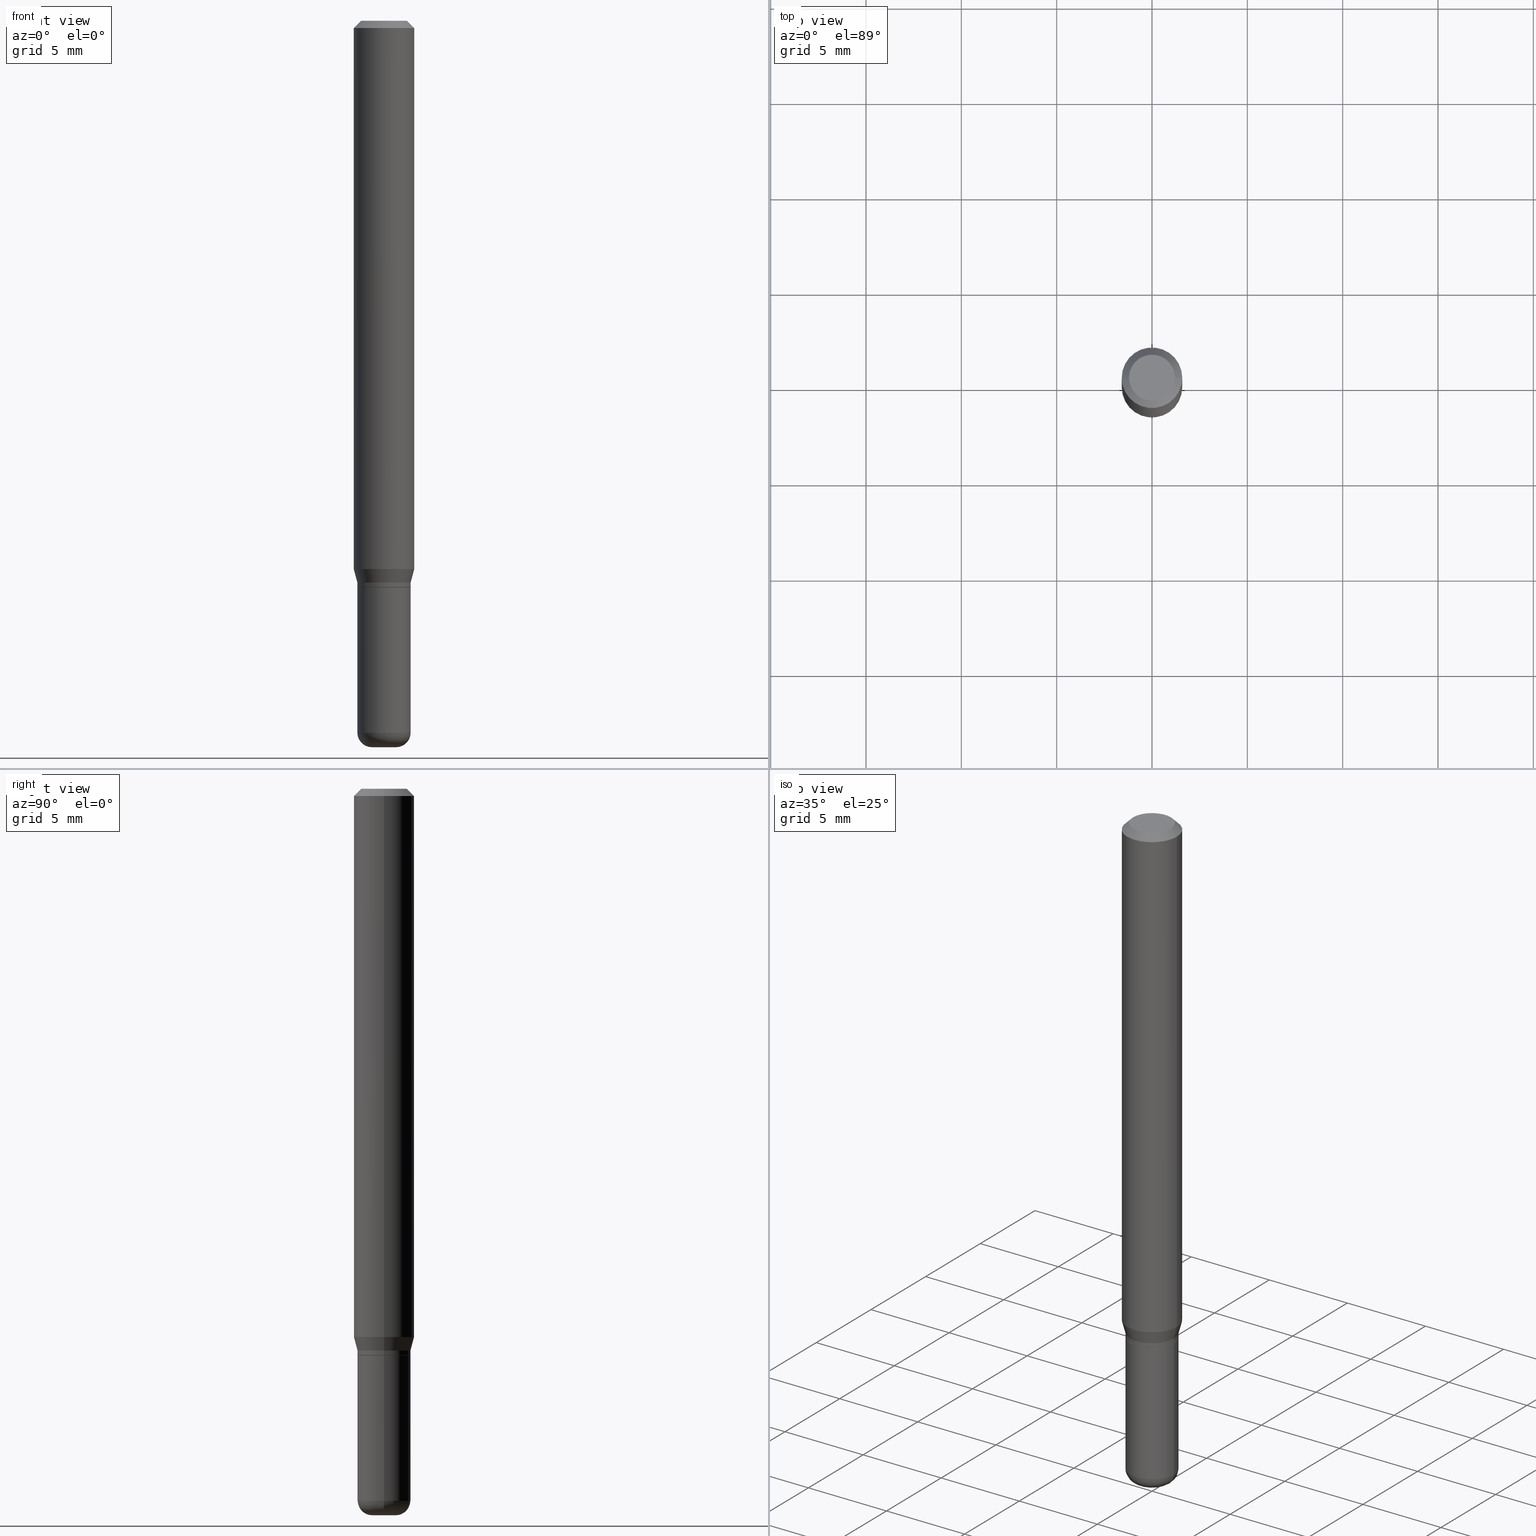
[diagram: canonical four-view strip — front | top / right | iso, engineering-drawing reading convention]
A machine part, canonical four-view strip (front | top / right | iso — engineering-drawing reading convention). The complete STEP part file that produces these views, byte-faithful:
ISO-10303-21;
HEADER;
FILE_DESCRIPTION (( 'STEP AP203' ),
    '1' );
FILE_NAME ('08761.STEP',
    '2024-02-29T20:53:11',
    ( '' ),
    ( '' ),
    'SwSTEP 2.0',
    'SolidWorks 2023',
    '' );
FILE_SCHEMA (( 'CONFIG_CONTROL_DESIGN' ));
ENDSEC;

DATA;
#1 = VECTOR ( 'NONE', #130, 39.37007874015748854 ) ;
#2 = CC_DESIGN_APPROVAL ( #43, ( #230 ) ) ;
#3 = DIRECTION ( 'NONE',  ( 1.000000000000000000, -6.982962677686267499E-15, 4.876176775795936353E-29 ) ) ;
#4 = ORIENTED_EDGE ( 'NONE', *, *, #245, .F. ) ;
#5 = FACE_OUTER_BOUND ( 'NONE', #236, .T. ) ;
#6 = PLANE ( 'NONE',  #275 ) ;
#7 = ORIENTED_EDGE ( 'NONE', *, *, #163, .T. ) ;
#8 = MECHANICAL_CONTEXT ( 'NONE', #488, 'mechanical' ) ;
#9 = DIRECTION ( 'NONE',  ( -2.445468806185136877E-29, 3.491481338843145188E-15, 1.000000000000000000 ) ) ;
#10 = DIRECTION ( 'NONE',  ( 1.000000000000000000, -6.982962677686265922E-15, 4.876176775795935793E-29 ) ) ;
#11 = CARTESIAN_POINT ( 'NONE',  ( -0.06250000000000000000, 3.840629472727455270E-16, -0.01499999999999970281 ) ) ;
#12 = ADVANCED_FACE ( 'NONE', ( #259 ), #278, .T. ) ;
#13 =( CONVERSION_BASED_UNIT ( 'INCH', #411 ) LENGTH_UNIT ( ) NAMED_UNIT ( #320 ) );
#14 = ORIENTED_EDGE ( 'NONE', *, *, #277, .T. ) ;
#15 = DIRECTION ( 'NONE',  ( -2.445468806185136597E-29, 3.491481338843145583E-15, 1.000000000000000000 ) ) ;
#16 = APPLICATION_PROTOCOL_DEFINITION ( 'international standard', 'config_control_design', 1994, #436 ) ;
#17 = LOCAL_TIME ( 15, 53, 11.00000000000000000, #79 ) ;
#18 = EDGE_CURVE ( 'NONE', #385, #346, #381, .T. ) ;
#19 = ORIENTED_EDGE ( 'NONE', *, *, #314, .F. ) ;
#20 = VECTOR ( 'NONE', #100, 39.37007874015748143 ) ;
#21 = DIRECTION ( 'NONE',  ( 1.000000000000000000, -6.982962677686265133E-15, 4.883557194083112340E-29 ) ) ;
#22 = VERTEX_POINT ( 'NONE', #342 ) ;
#23 = CARTESIAN_POINT ( 'NONE',  ( 2.861198503236610065E-29, -4.085033166446480067E-15, -1.170000000000000151 ) ) ;
#24 = FACE_OUTER_BOUND ( 'NONE', #514, .T. ) ;
#25 = APPROVAL_DATE_TIME ( #191, #437 ) ;
#26 = ORIENTED_EDGE ( 'NONE', *, *, #438, .F. ) ;
#27 = LINE ( 'NONE', #267, #313 ) ;
#28 = ORIENTED_EDGE ( 'NONE', *, *, #33, .F. ) ;
#29 = ORIENTED_EDGE ( 'NONE', *, *, #115, .T. ) ;
#30 = DIRECTION ( 'NONE',  ( -2.445468806185136597E-29, 3.491481338843145583E-15, 1.000000000000000000 ) ) ;
#31 = CIRCLE ( 'NONE', #513, 0.05500000000000006273 ) ;
#32 = CIRCLE ( 'NONE', #481, 0.05500000000000003497 ) ;
#33 = EDGE_CURVE ( 'NONE', #62, #453, #262, .T. ) ;
#34 = EDGE_LOOP ( 'NONE', ( #177, #483 ) ) ;
#35 = DATE_TIME_ROLE ( 'classification_date' ) ;
#36 = DIRECTION ( 'NONE',  ( 1.000000000000000000, -6.982962677686261977E-15, 0.000000000000000000 ) ) ;
#37 = CC_DESIGN_DATE_AND_TIME_ASSIGNMENT ( #75, #35, ( #230 ) ) ;
#38 = FACE_OUTER_BOUND ( 'NONE', #432, .T. ) ;
#39 = EDGE_CURVE ( 'NONE', #442, #286, #507, .T. ) ;
#40 = DIRECTION ( 'NONE',  ( 1.000000000000000000, -6.982962677686265133E-15, 0.000000000000000000 ) ) ;
#41 = AXIS2_PLACEMENT_3D ( 'NONE', #226, #30, #470 ) ;
#42 = AXIS2_PLACEMENT_3D ( 'NONE', #397, #205, #200 ) ;
#43 = APPROVAL ( #510, 'UNSPECIFIED' ) ;
#44 = DIRECTION ( 'NONE',  ( 0.7071067811865479058, -7.319954787623257623E-15, -0.7071067811865471286 ) ) ;
#45 = CARTESIAN_POINT ( 'NONE',  ( -0.05500000000000011130, -4.217956862604895410E-15, -1.470000000000000195 ) ) ;
#46 = CARTESIAN_POINT ( 'NONE',  ( 3.668203209277632395E-31, -5.237222008264614861E-17, -0.01499999999999970281 ) ) ;
#47 = DIRECTION ( 'NONE',  ( -2.438088387897960049E-29, 3.491481338843145188E-15, 1.000000000000000000 ) ) ;
#48 = ADVANCED_FACE ( 'NONE', ( #24 ), #347, .T. ) ;
#49 = AXIS2_PLACEMENT_3D ( 'NONE', #182, #108, #373 ) ;
#50 = LOCAL_TIME ( 15, 53, 11.00000000000000000, #425 ) ;
#51 = CARTESIAN_POINT ( 'NONE',  ( 3.594839145092150820E-29, -5.132477568099424807E-15, -1.470000000000000195 ) ) ;
#52 = EDGE_CURVE ( 'NONE', #501, #134, #142, .T. ) ;
#53 = DIRECTION ( 'NONE',  ( -2.445468806185136597E-29, 3.491481338843145583E-15, 1.000000000000000000 ) ) ;
#54 = ADVANCED_FACE ( 'NONE', ( #410 ), #84, .T. ) ;
#55 = DIRECTION ( 'NONE',  ( -2.445468806185136597E-29, 3.491481338843145583E-15, 1.000000000000000000 ) ) ;
#56 = AXIS2_PLACEMENT_3D ( 'NONE', #155, #159, #518 ) ;
#57 = ORIENTED_EDGE ( 'NONE', *, *, #337, .T. ) ;
#58 = DIRECTION ( 'NONE',  ( 1.000000000000000000, -6.982962677686262766E-15, 0.000000000000000000 ) ) ;
#59 = DIRECTION ( 'NONE',  ( 1.000000000000000000, -6.982962677686266711E-15, 0.000000000000000000 ) ) ;
#60 = ORIENTED_EDGE ( 'NONE', *, *, #370, .F. ) ;
#61 = DIRECTION ( 'NONE',  ( -1.000000000000000000, 6.982962677686265922E-15, -4.876176775795935793E-29 ) ) ;
#62 = VERTEX_POINT ( 'NONE', #403 ) ;
#63 = PRODUCT_DEFINITION_SHAPE ( 'NONE', 'NONE',  #234 ) ;
#64 = DIRECTION ( 'NONE',  ( 1.000000000000000000, -6.982962677686258033E-15, 0.000000000000000000 ) ) ;
#65 = SECURITY_CLASSIFICATION_LEVEL ( 'unclassified' ) ;
#66 = ORIENTED_EDGE ( 'NONE', *, *, #465, .F. ) ;
#67 = CIRCLE ( 'NONE', #284, 0.03000000000000010991 ) ;
#68 = CARTESIAN_POINT ( 'NONE',  ( 3.840629472727732850E-16, 0.05499999999999591327, -1.170000000000000151 ) ) ;
#69 = DATE_AND_TIME ( #220, #50 ) ;
#70 = ORIENTED_EDGE ( 'NONE', *, *, #121, .T. ) ;
#71 = CARTESIAN_POINT ( 'NONE',  ( -6.680649051745406845E-45, 9.538196290434862081E-31, 2.731847993664263218E-16 ) ) ;
#72 = EDGE_LOOP ( 'NONE', ( #495, #57, #7, #400 ) ) ;
#73 = ADVANCED_FACE ( 'NONE', ( #445 ), #458, .T. ) ;
#74 = DIRECTION ( 'NONE',  ( -2.445468806185136597E-29, 3.491481338843145583E-15, 1.000000000000000000 ) ) ;
#75 = DATE_AND_TIME ( #462, #17 ) ;
#76 = CARTESIAN_POINT ( 'NONE',  ( 2.861198503236610065E-29, -4.085033166446480067E-15, -1.170000000000000151 ) ) ;
#77 = CLOSED_SHELL ( 'NONE', ( #287, #378, #89, #516, #156, #396 ) ) ;
#78 = EDGE_CURVE ( 'NONE', #346, #249, #302, .T. ) ;
#79 = COORDINATED_UNIVERSAL_TIME_OFFSET ( 5, 0, .BEHIND. ) ;
#80 = CARTESIAN_POINT ( 'NONE',  ( 0.05450000000000006228, -4.465604632380382045E-15, -1.170000000000000151 ) ) ;
#81 = CARTESIAN_POINT ( 'NONE',  ( -0.05500000000000006273, -3.692488921109003903E-15, -1.169500000000000206 ) ) ;
#82 = ORIENTED_EDGE ( 'NONE', *, *, #133, .F. ) ;
#83 = CC_DESIGN_PERSON_AND_ORGANIZATION_ASSIGNMENT ( #479, #285, ( #234 ) ) ;
#84 = CONICAL_SURFACE ( 'NONE', #87, 0.05450000000000006228, 0.7853981633975507526 ) ;
#85 = DIRECTION ( 'NONE',  ( -2.445468806185136597E-29, 3.491481338843145583E-15, 1.000000000000000000 ) ) ;
#86 = VECTOR ( 'NONE', #44, 39.37007874015748143 ) ;
#87 = AXIS2_PLACEMENT_3D ( 'NONE', #362, #104, #454 ) ;
#88 = CIRCLE ( 'NONE', #408, 0.05500000000000000028 ) ;
#89 = ADVANCED_FACE ( 'NONE', ( #413 ), #416, .F. ) ;
#90 = APPROVAL_ROLE ( '' ) ;
#91 = DIRECTION ( 'NONE',  ( -2.445468806185136597E-29, 3.491481338843145583E-15, 1.000000000000000000 ) ) ;
#92 = AXIS2_PLACEMENT_3D ( 'NONE', #23, #448, #283 ) ;
#93 = LOCAL_TIME ( 15, 53, 11.00000000000000000, #404 ) ;
#94 = CARTESIAN_POINT ( 'NONE',  ( 0.05500000000000004191, -3.840629472727449846E-16, 2.681897226687766928E-30 ) ) ;
#95 = DIRECTION ( 'NONE',  ( 1.000000000000000000, -6.982962677686251722E-15, 0.000000000000000000 ) ) ;
#96 = ORIENTED_EDGE ( 'NONE', *, *, #343, .F. ) ;
#97 = CARTESIAN_POINT ( 'NONE',  ( -0.05500000000000006273, 3.907985046680555479E-16, -2.705414299640201165E-30 ) ) ;
#98 = DIRECTION ( 'NONE',  ( -2.445468806185136597E-29, 3.491481338843145583E-15, 1.000000000000000000 ) ) ;
#99 = ORIENTED_EDGE ( 'NONE', *, *, #343, .T. ) ;
#100 = DIRECTION ( 'NONE',  ( -2.445468806185136877E-29, 3.491481338843145188E-15, 1.000000000000000000 ) ) ;
#101 = DIRECTION ( 'NONE',  ( -0.7071067811866199593, 7.493145998870616062E-15, 0.7071067811864750752 ) ) ;
#102 = ORIENTED_EDGE ( 'NONE', *, *, #308, .F. ) ;
#103 = AXIS2_PLACEMENT_3D ( 'NONE', #76, #150, #386 ) ;
#104 = DIRECTION ( 'NONE',  ( -2.445468806185136597E-29, 3.491481338843145583E-15, 1.000000000000000000 ) ) ;
#105 = AXIS2_PLACEMENT_3D ( 'NONE', #46, #98, #59 ) ;
#106 = ORIENTED_EDGE ( 'NONE', *, *, #203, .F. ) ;
#107 = CYLINDRICAL_SURFACE ( 'NONE', #175, 0.05500000000000004191 ) ;
#108 = DIRECTION ( 'NONE',  ( 2.445468806185136597E-29, -3.491481338843145583E-15, -1.000000000000000000 ) ) ;
#109 = DIRECTION ( 'NONE',  ( -2.445468806185136597E-29, 3.491481338843145583E-15, 1.000000000000000000 ) ) ;
#110 = PERSON_AND_ORGANIZATION ( #183, #153 ) ;
#111 = DIRECTION ( 'NONE',  ( -2.445468806185136597E-29, 3.491481338843145583E-15, 1.000000000000000000 ) ) ;
#112 = AXIS2_PLACEMENT_3D ( 'NONE', #187, #422, #505 ) ;
#113 = EDGE_CURVE ( 'NONE', #385, #225, #123, .T. ) ;
#114 = FACE_OUTER_BOUND ( 'NONE', #158, .T. ) ;
#115 = EDGE_CURVE ( 'NONE', #206, #225, #222, .T. ) ;
#116 = ORIENTED_EDGE ( 'NONE', *, *, #18, .T. ) ;
#117 = DIRECTION ( 'NONE',  ( 1.000000000000000000, -6.982962677686265922E-15, 4.876176775795935793E-29 ) ) ;
#118 = CARTESIAN_POINT ( 'NONE',  ( 3.582686580359767159E-29, -5.359686688179454114E-15, -1.500000000000000444 ) ) ;
#119 = VECTOR ( 'NONE', #407, 39.37007874015748143 ) ;
#120 = CIRCLE ( 'NONE', #358, 0.05450000000000006228 ) ;
#121 = EDGE_CURVE ( 'NONE', #453, #160, #132, .T. ) ;
#122 = CYLINDRICAL_SURFACE ( 'NONE', #56, 0.05500000000000006273 ) ;
#123 = CIRCLE ( 'NONE', #152, 0.06250000000000000000 ) ;
#124 = AXIS2_PLACEMENT_3D ( 'NONE', #351, #274, #517 ) ;
#125 = COORDINATED_UNIVERSAL_TIME_OFFSET ( 5, 0, .BEHIND. ) ;
#126 = DATE_TIME_ROLE ( 'creation_date' ) ;
#127 = CARTESIAN_POINT ( 'NONE',  ( 0.04750000000000000749, -4.035134999187568762E-16, 2.731847993664288856E-16 ) ) ;
#128 = DIRECTION ( 'NONE',  ( 0.000000000000000000, 0.000000000000000000, 1.000000000000000000 ) ) ;
#129 = ORIENTED_EDGE ( 'NONE', *, *, #280, .T. ) ;
#130 = DIRECTION ( 'NONE',  ( -0.2588190451025207950, 5.211531920934546309E-15, 0.9659258262890682012 ) ) ;
#131 = APPROVAL_ROLE ( '' ) ;
#132 = CIRCLE ( 'NONE', #92, 0.05500000000000000028 ) ;
#133 = EDGE_CURVE ( 'NONE', #456, #160, #334, .T. ) ;
#134 = VERTEX_POINT ( 'NONE', #499 ) ;
#135 = LINE ( 'NONE', #264, #328 ) ;
#136 = ORIENTED_EDGE ( 'NONE', *, *, #199, .T. ) ;
#137 = PERSON_AND_ORGANIZATION ( #183, #153 ) ;
#138 = ORIENTED_EDGE ( 'NONE', *, *, #203, .T. ) ;
#139 = EDGE_CURVE ( 'NONE', #286, #206, #250, .T. ) ;
#140 = DIRECTION ( 'NONE',  ( 1.000000000000000000, -6.982962677686251722E-15, 0.000000000000000000 ) ) ;
#141 = ORIENTED_EDGE ( 'NONE', *, *, #163, .F. ) ;
#142 = LINE ( 'NONE', #94, #20 ) ;
#143 = AXIS2_PLACEMENT_3D ( 'NONE', #268, #392, #196 ) ;
#144 = ORIENTED_EDGE ( 'NONE', *, *, #277, .F. ) ;
#145 = AXIS2_PLACEMENT_3D ( 'NONE', #190, #390, #463 ) ;
#146 = DIRECTION ( 'NONE',  ( -2.445468806185136597E-29, 3.491481338843145583E-15, 1.000000000000000000 ) ) ;
#147 = CARTESIAN_POINT ( 'NONE',  ( 0.06250000000000000000, -4.364351673553916694E-16, 3.047610484872459871E-30 ) ) ;
#148 = DIRECTION ( 'NONE',  ( 1.000000000000000000, -6.982962677686262766E-15, 0.000000000000000000 ) ) ;
#149 = CARTESIAN_POINT ( 'NONE',  ( -0.05450000000000006228, -3.697787375457225517E-15, -1.170000000000000151 ) ) ;
#150 = DIRECTION ( 'NONE',  ( -2.438088387897960049E-29, 3.491481338843145188E-15, 1.000000000000000000 ) ) ;
#151 = CC_DESIGN_SECURITY_CLASSIFICATION ( #230, ( #348 ) ) ;
#152 = AXIS2_PLACEMENT_3D ( 'NONE', #451, #327, #168 ) ;
#153 = ORGANIZATION ( 'UNSPECIFIED', 'UNSPECIFIED', '' ) ;
#154 = EDGE_LOOP ( 'NONE', ( #82, #129, #333, #430 ) ) ;
#155 = CARTESIAN_POINT ( 'NONE',  ( 0.000000000000000000, 0.000000000000000000, 0.000000000000000000 ) ) ;
#156 = ADVANCED_FACE ( 'NONE', ( #246 ), #387, .T. ) ;
#157 = CIRCLE ( 'NONE', #427, 0.05500000000000006273 ) ;
#158 = EDGE_LOOP ( 'NONE', ( #365, #138, #423, #368 ) ) ;
#159 = DIRECTION ( 'NONE',  ( -2.445468806185136597E-29, 3.491481338843145583E-15, 1.000000000000000000 ) ) ;
#160 = VERTEX_POINT ( 'NONE', #166 ) ;
#161 = CARTESIAN_POINT ( 'NONE',  ( 0.06250000000000000000, -4.388825627286632416E-15, -1.132009618943234042 ) ) ;
#162 = ORIENTED_EDGE ( 'NONE', *, *, #438, .T. ) ;
#163 = EDGE_CURVE ( 'NONE', #134, #385, #319, .T. ) ;
#164 = TOROIDAL_SURFACE ( 'NONE', #433, 0.02500000000000000139, 0.03000000000000011685 ) ;
#165 = PERSON_AND_ORGANIZATION ( #183, #153 ) ;
#166 = CARTESIAN_POINT ( 'NONE',  ( -0.05500000000000000028, -4.217956862604896988E-15, -1.170000000000000151 ) ) ;
#167 = FACE_OUTER_BOUND ( 'NONE', #154, .T. ) ;
#168 = DIRECTION ( 'NONE',  ( 1.000000000000000000, -6.982962677686270655E-15, 0.000000000000000000 ) ) ;
#169 = EDGE_CURVE ( 'NONE', #420, #249, #178, .T. ) ;
#170 = DIRECTION ( 'NONE',  ( -2.445468806185136597E-29, 3.491481338843145583E-15, 1.000000000000000000 ) ) ;
#171 = VERTEX_POINT ( 'NONE', #127 ) ;
#172 = CARTESIAN_POINT ( 'NONE',  ( 2.859975768833517824E-29, -4.083287425777059353E-15, -1.169500000000000206 ) ) ;
#173 = ORIENTED_EDGE ( 'NONE', *, *, #139, .T. ) ;
#174 =( NAMED_UNIT ( * ) PLANE_ANGLE_UNIT ( ) SI_UNIT ( $, .RADIAN. ) );
#175 = AXIS2_PLACEMENT_3D ( 'NONE', #345, #261, #192 ) ;
#176 = CC_DESIGN_APPROVAL ( #437, ( #348 ) ) ;
#177 = ORIENTED_EDGE ( 'NONE', *, *, #199, .F. ) ;
#178 = LINE ( 'NONE', #11, #406 ) ;
#179 = ORIENTED_EDGE ( 'NONE', *, *, #419, .F. ) ;
#180 = ADVANCED_FACE ( 'NONE', ( #332 ), #197, .T. ) ;
#181 = DIRECTION ( 'NONE',  ( -2.445468806185136597E-29, 3.491481338843145583E-15, 1.000000000000000000 ) ) ;
#182 = CARTESIAN_POINT ( 'NONE',  ( 3.668203209277632395E-31, -5.237222008264614861E-17, -0.01499999999999970281 ) ) ;
#183 = PERSON ( 'UNSPECIFIED', 'UNSPECIFIED', 'UNSPECIFIED', ('UNSPECIFIED'), ('UNSPECIFIED'), ('UNSPECIFIED') ) ;
#184 = EDGE_LOOP ( 'NONE', ( #292, #379, #498, #106 ) ) ;
#185 = CARTESIAN_POINT ( 'NONE',  ( 0.02500000000000001180, -5.411796075206875633E-15, -1.500000000000000444 ) ) ;
#186 = APPROVAL ( #210, 'UNSPECIFIED' ) ;
#187 = CARTESIAN_POINT ( 'NONE',  ( 2.861198503236610065E-29, -4.085033166446480067E-15, -1.170000000000000151 ) ) ;
#188 = CONICAL_SURFACE ( 'NONE', #475, 0.06250000000000000000, 0.7853981633974488341 ) ;
#189 = CIRCLE ( 'NONE', #394, 0.02500000000000001180 ) ;
#190 = CARTESIAN_POINT ( 'NONE',  ( 3.316907271900976589E-16, 0.04750000000000000749, -2.925296391183627249E-17 ) ) ;
#191 = DATE_AND_TIME ( #418, #93 ) ;
#192 = DIRECTION ( 'NONE',  ( 1.000000000000000000, -6.982962677686267499E-15, 4.876176775795936353E-29 ) ) ;
#193 = CARTESIAN_POINT ( 'NONE',  ( -0.06250000000000000000, -1.558292130156881494E-15, -0.01499999999999970281 ) ) ;
#194 = ORIENTED_EDGE ( 'NONE', *, *, #263, .F. ) ;
#195 = CARTESIAN_POINT ( 'NONE',  ( 2.861198503236610065E-29, -4.085033166446480067E-15, -1.170000000000000151 ) ) ;
#196 = DIRECTION ( 'NONE',  ( -1.000000000000000000, 7.105427357600997126E-15, 0.000000000000000000 ) ) ;
#197 = CONICAL_SURFACE ( 'NONE', #202, 0.05500000000000003497, 0.2617993877991495189 ) ;
#198 = CARTESIAN_POINT ( 'NONE',  ( -0.04750000000000000749, 3.578768372314221353E-16, 2.731847993664239060E-16 ) ) ;
#199 = EDGE_CURVE ( 'NONE', #257, #22, #363, .T. ) ;
#200 = DIRECTION ( 'NONE',  ( 1.000000000000000000, -6.982962677686266711E-15, 4.876176775795935793E-29 ) ) ;
#201 = FACE_OUTER_BOUND ( 'NONE', #270, .T. ) ;
#202 = AXIS2_PLACEMENT_3D ( 'NONE', #282, #15, #497 ) ;
#203 = EDGE_CURVE ( 'NONE', #286, #501, #157, .T. ) ;
#204 = ORIENTED_EDGE ( 'NONE', *, *, #263, .T. ) ;
#205 = DIRECTION ( 'NONE',  ( -2.445468806185136597E-29, 3.491481338843145583E-15, 1.000000000000000000 ) ) ;
#206 = VERTEX_POINT ( 'NONE', #491 ) ;
#207 = DIRECTION ( 'NONE',  ( -2.445468806185136597E-29, 3.491481338843145583E-15, 1.000000000000000000 ) ) ;
#208 = DIRECTION ( 'NONE',  ( 1.000000000000000000, -6.982962677686266711E-15, 0.000000000000000000 ) ) ;
#209 = CIRCLE ( 'NONE', #388, 0.05450000000000006228 ) ;
#210 = APPROVAL_STATUS ( 'not_yet_approved' ) ;
#211 = CARTESIAN_POINT ( 'NONE',  ( 2.836743815174759641E-29, -4.050118353058050785E-15, -1.160000000000000364 ) ) ;
#212 = EDGE_CURVE ( 'NONE', #225, #249, #135, .T. ) ;
#213 = DIRECTION ( 'NONE',  ( 1.000000000000000000, -6.982962677686266711E-15, 4.876176775795935793E-29 ) ) ;
#214 = CC_DESIGN_PERSON_AND_ORGANIZATION_ASSIGNMENT ( #228, #232, ( #348 ) ) ;
#215 = APPLICATION_PROTOCOL_DEFINITION ( 'international standard', 'config_control_design', 1994, #488 ) ;
#216 = ORIENTED_EDGE ( 'NONE', *, *, #455, .T. ) ;
#217 = CARTESIAN_POINT ( 'NONE',  ( -0.05500000000000004191, 3.907985046680554000E-16, -2.705414299640200464E-30 ) ) ;
#218 = AXIS2_PLACEMENT_3D ( 'NONE', #494, #128, #325 ) ;
#219 = ORIENTED_EDGE ( 'NONE', *, *, #419, .T. ) ;
#220 = CALENDAR_DATE ( 2024, 29, 2 ) ;
#221 = CIRCLE ( 'NONE', #393, 0.05500000000000011130 ) ;
#222 = LINE ( 'NONE', #366, #1 ) ;
#223 = EDGE_LOOP ( 'NONE', ( #136, #14, #60, #194 ) ) ;
#224 = DIRECTION ( 'NONE',  ( -6.982962677686266711E-15, -1.000000000000000000, 3.491481338843145583E-15 ) ) ;
#225 = VERTEX_POINT ( 'NONE', #512 ) ;
#226 = CARTESIAN_POINT ( 'NONE',  ( 2.836743815174759641E-29, -4.050118353058050785E-15, -1.160000000000000364 ) ) ;
#227 = ORIENTED_EDGE ( 'NONE', *, *, #39, .T. ) ;
#228 = PERSON_AND_ORGANIZATION ( #183, #153 ) ;
#229 = CLOSED_SHELL ( 'NONE', ( #398, #12, #296, #496, #73, #180, #361, #48, #269, #272, #54, #251 ) ) ;
#230 = SECURITY_CLASSIFICATION ( '', '', #65 ) ;
#231 = CARTESIAN_POINT ( 'NONE',  ( 2.861198503236610065E-29, -4.085033166446480067E-15, -1.170000000000000151 ) ) ;
#232 = PERSON_AND_ORGANIZATION_ROLE ( 'creator' ) ;
#233 = DIRECTION ( 'NONE',  ( 1.000000000000000000, -6.982962677686270655E-15, 0.000000000000000000 ) ) ;
#234 = PRODUCT_DEFINITION ( 'UNKNOWN', '', #348, #255 ) ;
#235 = CARTESIAN_POINT ( 'NONE',  ( 3.594839145092150820E-29, -5.132477568099424807E-15, -1.470000000000000195 ) ) ;
#236 = EDGE_LOOP ( 'NONE', ( #486, #309, #316, #28 ) ) ;
#237 = EDGE_CURVE ( 'NONE', #134, #206, #447, .T. ) ;
#238 = AXIS2_PLACEMENT_3D ( 'NONE', #68, #380, #61 ) ;
#239 = LOCAL_TIME ( 15, 53, 11.00000000000000000, #125 ) ;
#240 =( GEOMETRIC_REPRESENTATION_CONTEXT ( 3 ) GLOBAL_UNCERTAINTY_ASSIGNED_CONTEXT ( ( #444 ) ) GLOBAL_UNIT_ASSIGNED_CONTEXT ( ( #13, #174, #443 ) ) REPRESENTATION_CONTEXT ( 'NONE', 'WORKASPACE' ) );
#241 = CYLINDRICAL_SURFACE ( 'NONE', #42, 0.06250000000000000000 ) ;
#242 = APPROVAL_DATE_TIME ( #364, #186 ) ;
#243 = ORIENTED_EDGE ( 'NONE', *, *, #78, .F. ) ;
#244 = CYLINDRICAL_SURFACE ( 'NONE', #477, 0.05500000000000006273 ) ;
#245 = EDGE_CURVE ( 'NONE', #326, #501, #27, .T. ) ;
#246 = FACE_OUTER_BOUND ( 'NONE', #321, .T. ) ;
#247 = AXIS2_PLACEMENT_3D ( 'NONE', #71, #74, #383 ) ;
#248 = CARTESIAN_POINT ( 'NONE',  ( 3.668203209277706016E-29, -5.237222008264719754E-15, -1.500000000000000444 ) ) ;
#249 = VERTEX_POINT ( 'NONE', #193 ) ;
#250 = LINE ( 'NONE', #217, #119 ) ;
#251 = ADVANCED_FACE ( 'NONE', ( #114 ), #107, .T. ) ;
#252 = CARTESIAN_POINT ( 'NONE',  ( 0.000000000000000000, 0.000000000000000000, 0.000000000000000000 ) ) ;
#253 = ORIENTED_EDGE ( 'NONE', *, *, #78, .T. ) ;
#254 = DIRECTION ( 'NONE',  ( -2.445468806185136597E-29, 3.491481338843145583E-15, 1.000000000000000000 ) ) ;
#255 = DESIGN_CONTEXT ( 'detailed design', #436, 'design' ) ;
#256 = CIRCLE ( 'NONE', #504, 0.06250000000000000000 ) ;
#257 = VERTEX_POINT ( 'NONE', #185 ) ;
#258 = DIRECTION ( 'NONE',  ( 0.7071067811866199593, -2.468850131083015945E-15, 0.7071067811864750752 ) ) ;
#259 = FACE_OUTER_BOUND ( 'NONE', #324, .T. ) ;
#260 = ORIENTED_EDGE ( 'NONE', *, *, #113, .F. ) ;
#261 = DIRECTION ( 'NONE',  ( -2.445468806185136597E-29, 3.491481338843145583E-15, 1.000000000000000000 ) ) ;
#262 = LINE ( 'NONE', #461, #480 ) ;
#263 = EDGE_CURVE ( 'NONE', #257, #62, #67, .T. ) ;
#264 = CARTESIAN_POINT ( 'NONE',  ( -0.06250000000000000000, 4.440892098500626162E-16, -3.074334431409316114E-30 ) ) ;
#265 = AXIS2_PLACEMENT_3D ( 'NONE', #457, #369, #21 ) ;
#266 = LOCAL_TIME ( 15, 53, 11.00000000000000000, #330 ) ;
#267 = CARTESIAN_POINT ( 'NONE',  ( 0.05450000000000006228, -4.465604632380382045E-15, -1.170000000000000151 ) ) ;
#268 = CARTESIAN_POINT ( 'NONE',  ( -0.02500000000000000139, -4.954841884159399603E-15, -1.470000000000000195 ) ) ;
#269 = ADVANCED_FACE ( 'NONE', ( #336 ), #344, .F. ) ;
#270 = EDGE_LOOP ( 'NONE', ( #405, #173, #471, #493 ) ) ;
#271 = LINE ( 'NONE', #431, #86 ) ;
#272 = ADVANCED_FACE ( 'NONE', ( #295 ), #472, .F. ) ;
#273 = VECTOR ( 'NONE', #464, 39.37007874015748143 ) ;
#274 = DIRECTION ( 'NONE',  ( -2.445468806185136597E-29, 3.491481338843145583E-15, 1.000000000000000000 ) ) ;
#275 = AXIS2_PLACEMENT_3D ( 'NONE', #118, #47, #117 ) ;
#276 = DIRECTION ( 'NONE',  ( -2.445468806185136597E-29, 3.491481338843145583E-15, 1.000000000000000000 ) ) ;
#277 = EDGE_CURVE ( 'NONE', #22, #456, #434, .T. ) ;
#278 = CONICAL_SURFACE ( 'NONE', #112, 0.05450000000000006228, 0.7853981633975507526 ) ;
#279 = FACE_OUTER_BOUND ( 'NONE', #372, .T. ) ;
#280 = EDGE_CURVE ( 'NONE', #456, #62, #221, .T. ) ;
#281 = APPROVAL_STATUS ( 'not_yet_approved' ) ;
#282 = CARTESIAN_POINT ( 'NONE',  ( 2.836743815174759641E-29, -4.050118353058050785E-15, -1.160000000000000364 ) ) ;
#283 = DIRECTION ( 'NONE',  ( 1.000000000000000000, -6.982962677686262766E-15, 0.000000000000000000 ) ) ;
#284 = AXIS2_PLACEMENT_3D ( 'NONE', #424, #224, #429 ) ;
#285 = PERSON_AND_ORGANIZATION_ROLE ( 'creator' ) ;
#286 = VERTEX_POINT ( 'NONE', #81 ) ;
#287 = ADVANCED_FACE ( 'NONE', ( #349 ), #164, .T. ) ;
#288 = DIRECTION ( 'NONE',  ( -0.7071067811865479058, 2.468850131082261005E-15, -0.7071067811865471286 ) ) ;
#289 = CALENDAR_DATE ( 2024, 29, 2 ) ;
#290 = EDGE_LOOP ( 'NONE', ( #96, #66 ) ) ;
#291 = DIRECTION ( 'NONE',  ( 0.2588190451025207950, 1.565188264969625912E-15, 0.9659258262890682012 ) ) ;
#292 = ORIENTED_EDGE ( 'NONE', *, *, #39, .F. ) ;
#293 = APPROVAL_ROLE ( '' ) ;
#294 = ORIENTED_EDGE ( 'NONE', *, *, #169, .F. ) ;
#295 = FACE_OUTER_BOUND ( 'NONE', #290, .T. ) ;
#296 = ADVANCED_FACE ( 'NONE', ( #506 ), #188, .T. ) ;
#297 = CARTESIAN_POINT ( 'NONE',  ( 2.836743815174759641E-29, -4.050118353058050785E-15, -1.160000000000000364 ) ) ;
#298 = CC_DESIGN_PERSON_AND_ORGANIZATION_ASSIGNMENT ( #110, #384, ( #230 ) ) ;
#299 = CARTESIAN_POINT ( 'NONE',  ( 2.768294211427201767E-29, -3.952390459931241535E-15, -1.132009618943234042 ) ) ;
#300 = APPROVAL_PERSON_ORGANIZATION ( #339, #43, #293 ) ;
#301 = SHAPE_DEFINITION_REPRESENTATION ( #63, #340 ) ;
#302 = CIRCLE ( 'NONE', #338, 0.06250000000000000000 ) ;
#303 = DIRECTION ( 'NONE',  ( -2.445468806185136877E-29, 3.491481338843145188E-15, 1.000000000000000000 ) ) ;
#304 = ORIENTED_EDGE ( 'NONE', *, *, #354, .T. ) ;
#305 = DIRECTION ( 'NONE',  ( 1.000000000000000000, -6.982962677686261977E-15, 0.000000000000000000 ) ) ;
#306 = DIRECTION ( 'NONE',  ( 1.000000000000000000, -6.982962677686265133E-15, 4.883557194083112340E-29 ) ) ;
#307 = CARTESIAN_POINT ( 'NONE',  ( -0.05450000000000006228, -3.695138148283114316E-15, -1.170000000000000151 ) ) ;
#308 = EDGE_CURVE ( 'NONE', #420, #171, #503, .T. ) ;
#309 = ORIENTED_EDGE ( 'NONE', *, *, #133, .T. ) ;
#310 = ORIENTED_EDGE ( 'NONE', *, *, #308, .T. ) ;
#311 = CARTESIAN_POINT ( 'NONE',  ( 0.000000000000000000, 0.000000000000000000, 0.000000000000000000 ) ) ;
#312 = ORIENTED_EDGE ( 'NONE', *, *, #212, .F. ) ;
#313 = VECTOR ( 'NONE', #258, 39.37007874015748143 ) ;
#314 = EDGE_CURVE ( 'NONE', #501, #286, #31, .T. ) ;
#315 = CIRCLE ( 'NONE', #399, 0.05500000000000011130 ) ;
#316 = ORIENTED_EDGE ( 'NONE', *, *, #121, .F. ) ;
#317 = DATE_AND_TIME ( #401, #239 ) ;
#318 = ORIENTED_EDGE ( 'NONE', *, *, #169, .T. ) ;
#319 = LINE ( 'NONE', #484, #468 ) ;
#320 = DIMENSIONAL_EXPONENTS ( 1.000000000000000000, 0.000000000000000000, 0.000000000000000000, 0.000000000000000000, 0.000000000000000000, 0.000000000000000000, 0.000000000000000000 ) ;
#321 = EDGE_LOOP ( 'NONE', ( #144, #450, #204, #489 ) ) ;
#322 = CARTESIAN_POINT ( 'NONE',  ( 3.668203209277706016E-29, -5.237222008264719754E-15, -1.500000000000000444 ) ) ;
#323 = PRODUCT ( '08761', '08761', '', ( #8 ) ) ;
#324 = EDGE_LOOP ( 'NONE', ( #99, #227, #19, #4 ) ) ;
#325 = DIRECTION ( 'NONE',  ( 1.000000000000000000, 0.000000000000000000, 0.000000000000000000 ) ) ;
#326 = VERTEX_POINT ( 'NONE', #80 ) ;
#327 = DIRECTION ( 'NONE',  ( -2.445468806185136597E-29, 3.491481338843145583E-15, 1.000000000000000000 ) ) ;
#328 = VECTOR ( 'NONE', #303, 39.37007874015748143 ) ;
#329 = AXIS2_PLACEMENT_3D ( 'NONE', #252, #170, #213 ) ;
#330 = COORDINATED_UNIVERSAL_TIME_OFFSET ( 5, 0, .BEHIND. ) ;
#331 = ORIENTED_EDGE ( 'NONE', *, *, #473, .T. ) ;
#332 = FACE_OUTER_BOUND ( 'NONE', #72, .T. ) ;
#333 = ORIENTED_EDGE ( 'NONE', *, *, #33, .T. ) ;
#334 = LINE ( 'NONE', #97, #490 ) ;
#335 = ORIENTED_EDGE ( 'NONE', *, *, #473, .F. ) ;
#336 = FACE_OUTER_BOUND ( 'NONE', #359, .T. ) ;
#337 = EDGE_CURVE ( 'NONE', #206, #134, #32, .T. ) ;
#338 = AXIS2_PLACEMENT_3D ( 'NONE', #487, #55, #208 ) ;
#339 = PERSON_AND_ORGANIZATION ( #183, #153 ) ;
#340 = ADVANCED_BREP_SHAPE_REPRESENTATION ( '08761', ( #352, #355, #218 ), #240 ) ;
#341 = DIRECTION ( 'NONE',  ( -2.445468806185136597E-29, 3.491481338843145583E-15, 1.000000000000000000 ) ) ;
#342 = CARTESIAN_POINT ( 'NONE',  ( -0.02500000000000001180, -4.900632693878031954E-15, -1.500000000000000444 ) ) ;
#343 = EDGE_CURVE ( 'NONE', #326, #442, #209, .T. ) ;
#344 = PLANE ( 'NONE',  #145 ) ;
#345 = CARTESIAN_POINT ( 'NONE',  ( 0.000000000000000000, 0.000000000000000000, 0.000000000000000000 ) ) ;
#346 = VERTEX_POINT ( 'NONE', #509 ) ;
#347 = CONICAL_SURFACE ( 'NONE', #49, 0.06250000000000000000, 0.7853981633974488341 ) ;
#348 = PRODUCT_DEFINITION_FORMATION_WITH_SPECIFIED_SOURCE ( 'ANY', '', #323, .NOT_KNOWN. ) ;
#349 = FACE_OUTER_BOUND ( 'NONE', #223, .T. ) ;
#350 = EDGE_LOOP ( 'NONE', ( #70, #216 ) ) ;
#351 = CARTESIAN_POINT ( 'NONE',  ( -6.680649051745406845E-45, 9.538196290434862081E-31, 2.731847993664263218E-16 ) ) ;
#352 = MANIFOLD_SOLID_BREP ( 'Body-Move/Copy2[1]', #77 ) ;
#353 = CYLINDRICAL_SURFACE ( 'NONE', #376, 0.05500000000000004191 ) ;
#354 = EDGE_CURVE ( 'NONE', #225, #385, #256, .T. ) ;
#355 = MANIFOLD_SOLID_BREP ( 'Body-Move/Copy2[2]', #229 ) ;
#356 = VECTOR ( 'NONE', #101, 39.37007874015748143 ) ;
#357 = DIRECTION ( 'NONE',  ( -2.445468806185136597E-29, 3.491481338843145583E-15, 1.000000000000000000 ) ) ;
#358 = AXIS2_PLACEMENT_3D ( 'NONE', #195, #276, #305 ) ;
#359 = EDGE_LOOP ( 'NONE', ( #310, #162 ) ) ;
#360 = FACE_OUTER_BOUND ( 'NONE', #34, .T. ) ;
#361 = ADVANCED_FACE ( 'NONE', ( #38 ), #241, .T. ) ;
#362 = CARTESIAN_POINT ( 'NONE',  ( 2.861198503236610065E-29, -4.085033166446480067E-15, -1.170000000000000151 ) ) ;
#363 = CIRCLE ( 'NONE', #439, 0.02500000000000001180 ) ;
#364 = DATE_AND_TIME ( #289, #266 ) ;
#365 = ORIENTED_EDGE ( 'NONE', *, *, #139, .F. ) ;
#366 = CARTESIAN_POINT ( 'NONE',  ( -0.05500000000000003497, -3.659319848389995336E-15, -1.160000000000000364 ) ) ;
#367 = CARTESIAN_POINT ( 'NONE',  ( 0.05500000000000006273, -4.467350373049804337E-15, -1.169500000000000206 ) ) ;
#368 = ORIENTED_EDGE ( 'NONE', *, *, #337, .F. ) ;
#369 = DIRECTION ( 'NONE',  ( -2.445468806185136597E-29, 3.491481338843145583E-15, 1.000000000000000000 ) ) ;
#370 = EDGE_CURVE ( 'NONE', #62, #456, #315, .T. ) ;
#371 = PERSON_AND_ORGANIZATION_ROLE ( 'design_owner' ) ;
#372 = EDGE_LOOP ( 'NONE', ( #415, #382, #243, #402 ) ) ;
#373 = DIRECTION ( 'NONE',  ( -1.000000000000000000, 6.982962677686266711E-15, 0.000000000000000000 ) ) ;
#374 = AXIS2_PLACEMENT_3D ( 'NONE', #211, #254, #64 ) ;
#375 = ORIENTED_EDGE ( 'NONE', *, *, #237, .T. ) ;
#376 = AXIS2_PLACEMENT_3D ( 'NONE', #311, #357, #3 ) ;
#377 = APPROVAL_DATE_TIME ( #69, #43 ) ;
#378 = ADVANCED_FACE ( 'NONE', ( #5 ), #122, .T. ) ;
#379 = ORIENTED_EDGE ( 'NONE', *, *, #465, .T. ) ;
#380 = DIRECTION ( 'NONE',  ( 2.438088387897960049E-29, -3.491481338843145188E-15, -1.000000000000000000 ) ) ;
#381 = LINE ( 'NONE', #147, #273 ) ;
#382 = ORIENTED_EDGE ( 'NONE', *, *, #212, .T. ) ;
#383 = DIRECTION ( 'NONE',  ( 1.000000000000000000, -6.982962677686266711E-15, 4.852736867747365086E-29 ) ) ;
#384 = PERSON_AND_ORGANIZATION_ROLE ( 'classification_officer' ) ;
#385 = VERTEX_POINT ( 'NONE', #161 ) ;
#386 = DIRECTION ( 'NONE',  ( 1.000000000000000000, -6.982962677686265922E-15, 4.876176775795935793E-29 ) ) ;
#387 = TOROIDAL_SURFACE ( 'NONE', #265, 0.02500000000000000139, 0.03000000000000011685 ) ;
#388 = AXIS2_PLACEMENT_3D ( 'NONE', #231, #389, #36 ) ;
#389 = DIRECTION ( 'NONE',  ( -2.445468806185136597E-29, 3.491481338843145583E-15, 1.000000000000000000 ) ) ;
#390 = DIRECTION ( 'NONE',  ( 2.438088387897960049E-29, -3.491481338843145188E-15, -1.000000000000000000 ) ) ;
#391 = CC_DESIGN_PERSON_AND_ORGANIZATION_ASSIGNMENT ( #165, #371, ( #323 ) ) ;
#392 = DIRECTION ( 'NONE',  ( 7.105427357601001859E-15, 1.000000000000000000, -3.491481338843145583E-15 ) ) ;
#393 = AXIS2_PLACEMENT_3D ( 'NONE', #460, #341, #40 ) ;
#394 = AXIS2_PLACEMENT_3D ( 'NONE', #248, #207, #95 ) ;
#395 = DIRECTION ( 'NONE',  ( 1.000000000000000000, -6.982962677686262766E-15, 0.000000000000000000 ) ) ;
#396 = ADVANCED_FACE ( 'NONE', ( #360 ), #6, .F. ) ;
#397 = CARTESIAN_POINT ( 'NONE',  ( 0.000000000000000000, 0.000000000000000000, 0.000000000000000000 ) ) ;
#398 = ADVANCED_FACE ( 'NONE', ( #201 ), #353, .T. ) ;
#399 = AXIS2_PLACEMENT_3D ( 'NONE', #51, #478, #440 ) ;
#400 = ORIENTED_EDGE ( 'NONE', *, *, #354, .F. ) ;
#401 = CALENDAR_DATE ( 2024, 29, 2 ) ;
#402 = ORIENTED_EDGE ( 'NONE', *, *, #18, .F. ) ;
#403 = CARTESIAN_POINT ( 'NONE',  ( 0.05500000000000011130, -5.516540515372169792E-15, -1.470000000000000195 ) ) ;
#404 = COORDINATED_UNIVERSAL_TIME_OFFSET ( 5, 0, .BEHIND. ) ;
#405 = ORIENTED_EDGE ( 'NONE', *, *, #314, .T. ) ;
#406 = VECTOR ( 'NONE', #288, 39.37007874015748143 ) ;
#407 = DIRECTION ( 'NONE',  ( -2.445468806185136877E-29, 3.491481338843145188E-15, 1.000000000000000000 ) ) ;
#408 = AXIS2_PLACEMENT_3D ( 'NONE', #474, #85, #395 ) ;
#409 =( LENGTH_UNIT ( ) NAMED_UNIT ( * ) SI_UNIT ( $, .METRE. ) );
#410 = FACE_OUTER_BOUND ( 'NONE', #184, .T. ) ;
#411 = LENGTH_MEASURE_WITH_UNIT ( LENGTH_MEASURE( 0.02539999999999999897 ), #409 );
#412 = EDGE_LOOP ( 'NONE', ( #375, #29, #260, #141 ) ) ;
#413 = FACE_OUTER_BOUND ( 'NONE', #350, .T. ) ;
#414 = PERSON_AND_ORGANIZATION_ROLE ( 'design_supplier' ) ;
#415 = ORIENTED_EDGE ( 'NONE', *, *, #113, .T. ) ;
#416 = PLANE ( 'NONE',  #238 ) ;
#417 = DIRECTION ( 'NONE',  ( -2.445468806185136877E-29, 3.491481338843145188E-15, 1.000000000000000000 ) ) ;
#418 = CALENDAR_DATE ( 2024, 29, 2 ) ;
#419 = EDGE_CURVE ( 'NONE', #171, #346, #271, .T. ) ;
#420 = VERTEX_POINT ( 'NONE', #198 ) ;
#421 = DIRECTION ( 'NONE',  ( 2.445468806185136597E-29, -3.491481338843145583E-15, -1.000000000000000000 ) ) ;
#422 = DIRECTION ( 'NONE',  ( -2.445468806185136597E-29, 3.491481338843145583E-15, 1.000000000000000000 ) ) ;
#423 = ORIENTED_EDGE ( 'NONE', *, *, #52, .T. ) ;
#424 = CARTESIAN_POINT ( 'NONE',  ( 0.02500000000000000139, -5.307051635041580686E-15, -1.470000000000000195 ) ) ;
#425 = COORDINATED_UNIVERSAL_TIME_OFFSET ( 5, 0, .BEHIND. ) ;
#426 = DIRECTION ( 'NONE',  ( 1.000000000000000000, -6.982962677686258033E-15, 0.000000000000000000 ) ) ;
#427 = AXIS2_PLACEMENT_3D ( 'NONE', #172, #91, #58 ) ;
#428 = DIRECTION ( 'NONE',  ( -1.000000000000000000, 6.982962677686266711E-15, 0.000000000000000000 ) ) ;
#429 = DIRECTION ( 'NONE',  ( 1.000000000000000000, -6.982962677686274599E-15, 0.000000000000000000 ) ) ;
#430 = ORIENTED_EDGE ( 'NONE', *, *, #455, .F. ) ;
#431 = CARTESIAN_POINT ( 'NONE',  ( 0.06250000000000000000, -4.811533449433669144E-16, -0.01499999999999970281 ) ) ;
#432 = EDGE_LOOP ( 'NONE', ( #312, #304, #116, #335 ) ) ;
#433 = AXIS2_PLACEMENT_3D ( 'NONE', #235, #515, #306 ) ;
#434 = CIRCLE ( 'NONE', #143, 0.03000000000000010991 ) ;
#435 = CARTESIAN_POINT ( 'NONE',  ( 0.05500000000000000028, -4.469096113719225052E-15, -1.170000000000000151 ) ) ;
#436 = APPLICATION_CONTEXT ( 'configuration controlled 3d designs of mechanical parts and assemblies' ) ;
#437 = APPROVAL ( #281, 'UNSPECIFIED' ) ;
#438 = EDGE_CURVE ( 'NONE', #171, #420, #469, .T. ) ;
#439 = AXIS2_PLACEMENT_3D ( 'NONE', #322, #181, #140 ) ;
#440 = DIRECTION ( 'NONE',  ( 1.000000000000000000, -6.982962677686265133E-15, 0.000000000000000000 ) ) ;
#441 = APPROVAL_PERSON_ORGANIZATION ( #482, #437, #90 ) ;
#442 = VERTEX_POINT ( 'NONE', #307 ) ;
#443 =( NAMED_UNIT ( * ) SI_UNIT ( $, .STERADIAN. ) SOLID_ANGLE_UNIT ( ) );
#444 = UNCERTAINTY_MEASURE_WITH_UNIT (LENGTH_MEASURE( 1.000000000000000082E-05 ), #13, 'distance_accuracy_value', 'NONE');
#445 = FACE_OUTER_BOUND ( 'NONE', #412, .T. ) ;
#446 = CARTESIAN_POINT ( 'NONE',  ( 0.000000000000000000, 0.000000000000000000, 0.000000000000000000 ) ) ;
#447 = CIRCLE ( 'NONE', #41, 0.05500000000000003497 ) ;
#448 = DIRECTION ( 'NONE',  ( -2.445468806185136597E-29, 3.491481338843145583E-15, 1.000000000000000000 ) ) ;
#449 = CIRCLE ( 'NONE', #105, 0.06250000000000000000 ) ;
#450 = ORIENTED_EDGE ( 'NONE', *, *, #485, .T. ) ;
#451 = CARTESIAN_POINT ( 'NONE',  ( 2.768294211427201767E-29, -3.952390459931241535E-15, -1.132009618943234042 ) ) ;
#452 = CYLINDRICAL_SURFACE ( 'NONE', #329, 0.06250000000000000000 ) ;
#453 = VERTEX_POINT ( 'NONE', #435 ) ;
#454 = DIRECTION ( 'NONE',  ( 1.000000000000000000, -6.982962677686261977E-15, 0.000000000000000000 ) ) ;
#455 = EDGE_CURVE ( 'NONE', #160, #453, #88, .T. ) ;
#456 = VERTEX_POINT ( 'NONE', #45 ) ;
#457 = CARTESIAN_POINT ( 'NONE',  ( 3.594839145092150820E-29, -5.132477568099424807E-15, -1.470000000000000195 ) ) ;
#458 = CONICAL_SURFACE ( 'NONE', #374, 0.05500000000000003497, 0.2617993877991495189 ) ;
#459 = EDGE_LOOP ( 'NONE', ( #26, #219, #253, #294 ) ) ;
#460 = CARTESIAN_POINT ( 'NONE',  ( 3.594839145092150820E-29, -5.132477568099424807E-15, -1.470000000000000195 ) ) ;
#461 = CARTESIAN_POINT ( 'NONE',  ( 0.05500000000000006273, -3.840629472727450832E-16, 2.681897226687767629E-30 ) ) ;
#462 = CALENDAR_DATE ( 2024, 29, 2 ) ;
#463 = DIRECTION ( 'NONE',  ( -1.000000000000000000, 6.982962677686265922E-15, -4.876176775795935793E-29 ) ) ;
#464 = DIRECTION ( 'NONE',  ( -2.445468806185136877E-29, 3.491481338843145188E-15, 1.000000000000000000 ) ) ;
#465 = EDGE_CURVE ( 'NONE', #442, #326, #120, .T. ) ;
#466 = CARTESIAN_POINT ( 'NONE',  ( 3.668203209277632395E-31, -5.237222008264614861E-17, -0.01499999999999970281 ) ) ;
#467 = CC_DESIGN_APPROVAL ( #186, ( #234 ) ) ;
#468 = VECTOR ( 'NONE', #291, 39.37007874015748854 ) ;
#469 = CIRCLE ( 'NONE', #124, 0.04750000000000000749 ) ;
#470 = DIRECTION ( 'NONE',  ( 1.000000000000000000, -6.982962677686258033E-15, 0.000000000000000000 ) ) ;
#471 = ORIENTED_EDGE ( 'NONE', *, *, #237, .F. ) ;
#472 = PLANE ( 'NONE',  #103 ) ;
#473 = EDGE_CURVE ( 'NONE', #249, #346, #449, .T. ) ;
#474 = CARTESIAN_POINT ( 'NONE',  ( 2.861198503236610065E-29, -4.085033166446480067E-15, -1.170000000000000151 ) ) ;
#475 = AXIS2_PLACEMENT_3D ( 'NONE', #466, #421, #428 ) ;
#476 = CC_DESIGN_DATE_AND_TIME_ASSIGNMENT ( #317, #126, ( #234 ) ) ;
#477 = AXIS2_PLACEMENT_3D ( 'NONE', #446, #53, #10 ) ;
#478 = DIRECTION ( 'NONE',  ( -2.445468806185136597E-29, 3.491481338843145583E-15, 1.000000000000000000 ) ) ;
#479 = PERSON_AND_ORGANIZATION ( #183, #153 ) ;
#480 = VECTOR ( 'NONE', #417, 39.37007874015748143 ) ;
#481 = AXIS2_PLACEMENT_3D ( 'NONE', #297, #109, #426 ) ;
#482 = PERSON_AND_ORGANIZATION ( #183, #153 ) ;
#483 = ORIENTED_EDGE ( 'NONE', *, *, #485, .F. ) ;
#484 = CARTESIAN_POINT ( 'NONE',  ( 0.05500000000000003497, -4.434181300330794981E-15, -1.160000000000000364 ) ) ;
#485 = EDGE_CURVE ( 'NONE', #22, #257, #189, .T. ) ;
#486 = ORIENTED_EDGE ( 'NONE', *, *, #370, .T. ) ;
#487 = CARTESIAN_POINT ( 'NONE',  ( 3.668203209277632395E-31, -5.237222008264614861E-17, -0.01499999999999970281 ) ) ;
#488 = APPLICATION_CONTEXT ( 'configuration controlled 3d designs of mechanical parts and assemblies' ) ;
#489 = ORIENTED_EDGE ( 'NONE', *, *, #280, .F. ) ;
#490 = VECTOR ( 'NONE', #9, 39.37007874015748143 ) ;
#491 = CARTESIAN_POINT ( 'NONE',  ( -0.05500000000000003497, -3.583810549235586733E-15, -1.160000000000000364 ) ) ;
#492 = APPROVAL_PERSON_ORGANIZATION ( #137, #186, #131 ) ;
#493 = ORIENTED_EDGE ( 'NONE', *, *, #52, .F. ) ;
#494 = CARTESIAN_POINT ( 'NONE',  ( 0.000000000000000000, 0.000000000000000000, 0.000000000000000000 ) ) ;
#495 = ORIENTED_EDGE ( 'NONE', *, *, #115, .F. ) ;
#496 = ADVANCED_FACE ( 'NONE', ( #279 ), #452, .T. ) ;
#497 = DIRECTION ( 'NONE',  ( 1.000000000000000000, -6.982962677686258033E-15, 0.000000000000000000 ) ) ;
#498 = ORIENTED_EDGE ( 'NONE', *, *, #245, .T. ) ;
#499 = CARTESIAN_POINT ( 'NONE',  ( 0.05500000000000003497, -4.434181300330794981E-15, -1.160000000000000364 ) ) ;
#500 = CC_DESIGN_PERSON_AND_ORGANIZATION_ASSIGNMENT ( #508, #414, ( #348 ) ) ;
#501 = VERTEX_POINT ( 'NONE', #367 ) ;
#502 = CARTESIAN_POINT ( 'NONE',  ( 2.859975768833517824E-29, -4.083287425777059353E-15, -1.169500000000000206 ) ) ;
#503 = CIRCLE ( 'NONE', #247, 0.04750000000000000749 ) ;
#504 = AXIS2_PLACEMENT_3D ( 'NONE', #299, #111, #233 ) ;
#505 = DIRECTION ( 'NONE',  ( 1.000000000000000000, -6.982962677686261977E-15, 0.000000000000000000 ) ) ;
#506 = FACE_OUTER_BOUND ( 'NONE', #459, .T. ) ;
#507 = LINE ( 'NONE', #149, #356 ) ;
#508 = PERSON_AND_ORGANIZATION ( #183, #153 ) ;
#509 = CARTESIAN_POINT ( 'NONE',  ( 0.06250000000000000000, -4.888073874380378612E-16, -0.01499999999999970281 ) ) ;
#510 = APPROVAL_STATUS ( 'not_yet_approved' ) ;
#511 = PRODUCT_RELATED_PRODUCT_CATEGORY ( 'detail', '', ( #323 ) ) ;
#512 = CARTESIAN_POINT ( 'NONE',  ( -0.06250000000000000000, -3.508301250081179708E-15, -1.132009618943234042 ) ) ;
#513 = AXIS2_PLACEMENT_3D ( 'NONE', #502, #146, #148 ) ;
#514 = EDGE_LOOP ( 'NONE', ( #179, #102, #318, #331 ) ) ;
#515 = DIRECTION ( 'NONE',  ( -2.445468806185136597E-29, 3.491481338843145583E-15, 1.000000000000000000 ) ) ;
#516 = ADVANCED_FACE ( 'NONE', ( #167 ), #244, .T. ) ;
#517 = DIRECTION ( 'NONE',  ( 1.000000000000000000, -6.982962677686266711E-15, 4.852736867747365086E-29 ) ) ;
#518 = DIRECTION ( 'NONE',  ( 1.000000000000000000, -6.982962677686265922E-15, 4.876176775795935793E-29 ) ) ;
ENDSEC;
END-ISO-10303-21;
